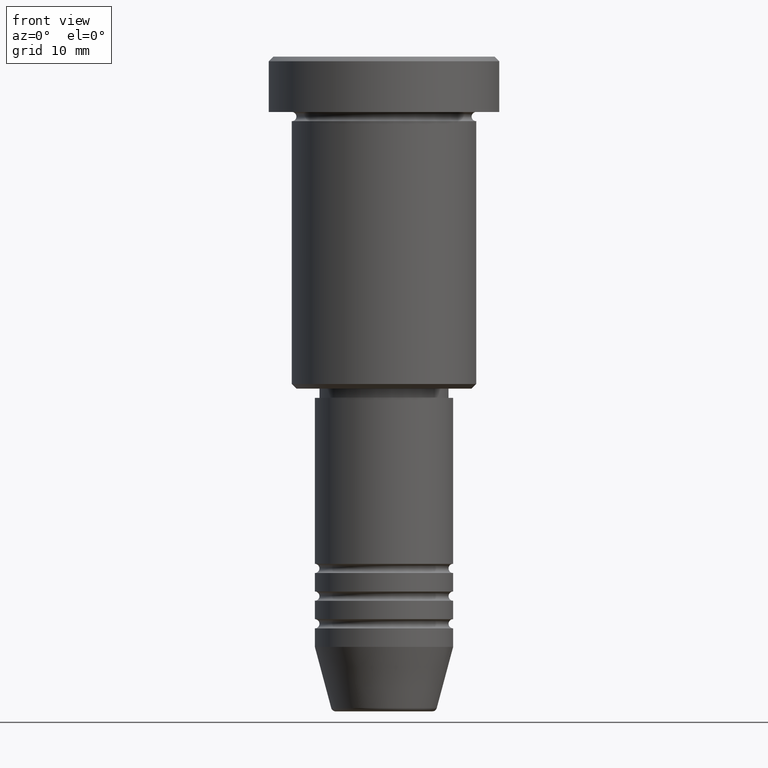
[diagram: clean part render]
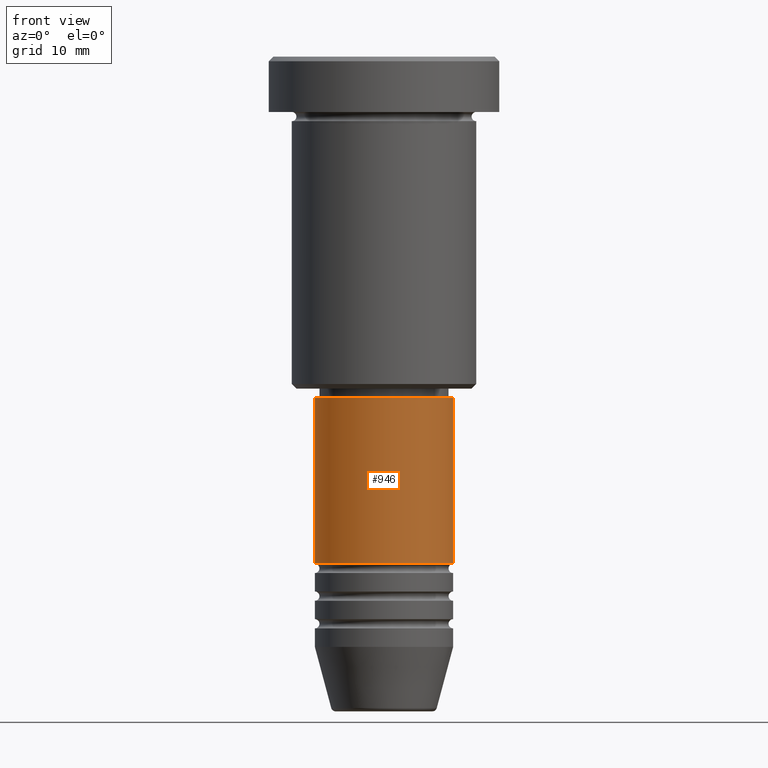
[diagram: same view with one face highlighted and labeled with its STEP entity id]
A machine part, front view. The second image highlights one B-rep face of the part: STEP entity #946.
In plain terms, the highlighted cylindrical surface (partial cylindrical patch) has radius 7.5 mm, axis along (-0, -0, 1).
Its self-contained STEP definition (entity closure, byte-faithful):
#22 = CIRCLE ( 'NONE', #690, 7.500000000000000000 ) ;
#73 = DIRECTION ( 'NONE',  ( 1.000000000000000000, 0.000000000000000000, 0.000000000000000000 ) ) ;
#94 = DIRECTION ( 'NONE',  ( -0.000000000000000000, -0.000000000000000000, 1.000000000000000000 ) ) ;
#153 = DIRECTION ( 'NONE',  ( -0.000000000000000000, -0.000000000000000000, 1.000000000000000000 ) ) ;
#165 = ORIENTED_EDGE ( 'NONE', *, *, #481, .T. ) ;
#187 = CYLINDRICAL_SURFACE ( 'NONE', #244, 7.500000000000000000 ) ;
#244 = AXIS2_PLACEMENT_3D ( 'NONE', #902, #94, #818 ) ;
#326 = VERTEX_POINT ( 'NONE', #688 ) ;
#350 = LINE ( 'NONE', #715, #1045 ) ;
#354 = CARTESIAN_POINT ( 'NONE',  ( 7.500000000000000000, 0.000000000000000000, -37.00000000000000000 ) ) ;
#356 = DIRECTION ( 'NONE',  ( -0.000000000000000000, -0.000000000000000000, 1.000000000000000000 ) ) ;
#366 = CARTESIAN_POINT ( 'NONE',  ( 7.500000000000000000, 0.000000000000000000, -54.99999999999997868 ) ) ;
#382 = VERTEX_POINT ( 'NONE', #815 ) ;
#437 = CIRCLE ( 'NONE', #532, 7.500000000000000000 ) ;
#464 = EDGE_CURVE ( 'NONE', #954, #834, #350, .T. ) ;
#478 = EDGE_LOOP ( 'NONE', ( #670, #165, #965, #841 ) ) ;
#481 = EDGE_CURVE ( 'NONE', #382, #954, #22, .T. ) ;
#532 = AXIS2_PLACEMENT_3D ( 'NONE', #955, #153, #73 ) ;
#549 = DIRECTION ( 'NONE',  ( -0.000000000000000000, -0.000000000000000000, 1.000000000000000000 ) ) ;
#642 = DIRECTION ( 'NONE',  ( -0.000000000000000000, -0.000000000000000000, 1.000000000000000000 ) ) ;
#670 = ORIENTED_EDGE ( 'NONE', *, *, #958, .F. ) ;
#682 = VECTOR ( 'NONE', #549, 1000.000000000000000 ) ;
#688 = CARTESIAN_POINT ( 'NONE',  ( -7.500000000000000000, 9.184850993605147944E-16, -37.00000000000000000 ) ) ;
#690 = AXIS2_PLACEMENT_3D ( 'NONE', #1176, #642, #1081 ) ;
#715 = CARTESIAN_POINT ( 'NONE',  ( 7.500000000000000000, 0.000000000000000000, 0.000000000000000000 ) ) ;
#790 = EDGE_CURVE ( 'NONE', #326, #834, #437, .T. ) ;
#815 = CARTESIAN_POINT ( 'NONE',  ( -7.500000000000000000, 9.184850993605147944E-16, -54.99999999999997868 ) ) ;
#818 = DIRECTION ( 'NONE',  ( 1.000000000000000000, 0.000000000000000000, 0.000000000000000000 ) ) ;
#834 = VERTEX_POINT ( 'NONE', #354 ) ;
#841 = ORIENTED_EDGE ( 'NONE', *, *, #790, .F. ) ;
#902 = CARTESIAN_POINT ( 'NONE',  ( 0.000000000000000000, 0.000000000000000000, 0.000000000000000000 ) ) ;
#946 = ADVANCED_FACE ( 'NONE', ( #988 ), #187, .T. ) ;
#954 = VERTEX_POINT ( 'NONE', #366 ) ;
#955 = CARTESIAN_POINT ( 'NONE',  ( 0.000000000000000000, 0.000000000000000000, -37.00000000000000000 ) ) ;
#958 = EDGE_CURVE ( 'NONE', #382, #326, #1091, .T. ) ;
#965 = ORIENTED_EDGE ( 'NONE', *, *, #464, .T. ) ;
#988 = FACE_OUTER_BOUND ( 'NONE', #478, .T. ) ;
#1000 = CARTESIAN_POINT ( 'NONE',  ( -7.500000000000000000, 9.184850993605147944E-16, 0.000000000000000000 ) ) ;
#1045 = VECTOR ( 'NONE', #356, 1000.000000000000000 ) ;
#1081 = DIRECTION ( 'NONE',  ( 1.000000000000000000, 0.000000000000000000, 0.000000000000000000 ) ) ;
#1091 = LINE ( 'NONE', #1000, #682 ) ;
#1176 = CARTESIAN_POINT ( 'NONE',  ( 0.000000000000000000, 0.000000000000000000, -54.99999999999997868 ) ) ;